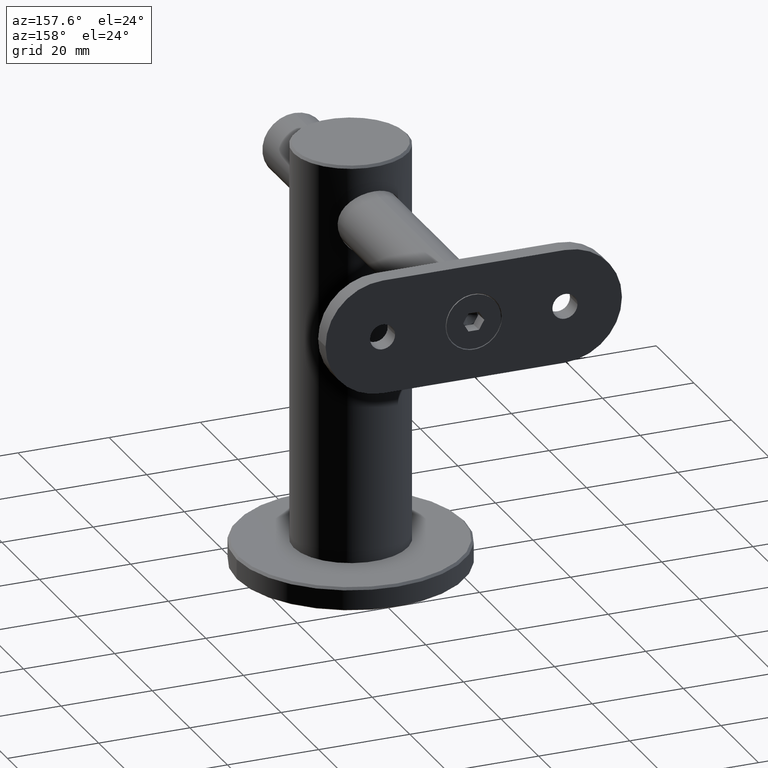
[diagram: clean part render]
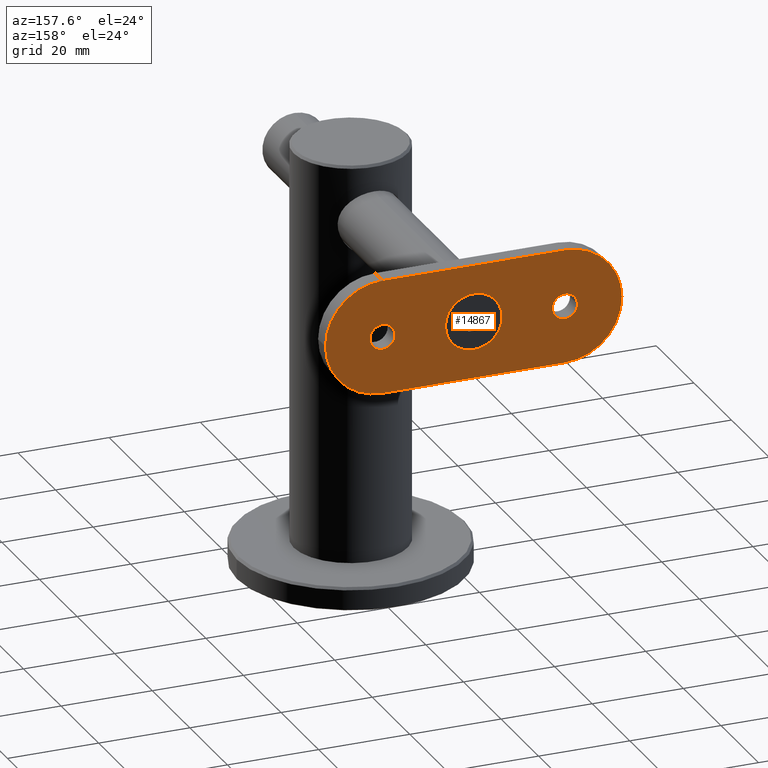
[diagram: same view with one face highlighted and labeled with its STEP entity id]
A machine part, auxiliary view. The second image highlights one B-rep face of the part: STEP entity #14867.
In plain terms, the highlighted planar face has unit normal (-0, -1, -0).
Its self-contained STEP definition (entity closure, byte-faithful):
#391 = DIRECTION ( 'NONE',  ( 0.0000000000000000000, 0.0000000000000000000, 1.000000000000000000 ) ) ;
#601 = FACE_OUTER_BOUND ( 'NONE', #7727, .T. ) ;
#981 = VERTEX_POINT ( 'NONE', #4517 ) ;
#1163 = DIRECTION ( 'NONE',  ( 0.0000000000000000000, 0.0000000000000000000, 1.000000000000000000 ) ) ;
#1387 = DIRECTION ( 'NONE',  ( 0.0000000000000000000, 0.0000000000000000000, -1.000000000000000000 ) ) ;
#1448 = CIRCLE ( 'NONE', #4873, 12.49999999999999600 ) ;
#1655 = VERTEX_POINT ( 'NONE', #14547 ) ;
#1741 = CARTESIAN_POINT ( 'NONE',  ( 4.694321675334250400E-015, 3.999999999999996400, 20.00000000000000000 ) ) ;
#2060 = VERTEX_POINT ( 'NONE', #18243 ) ;
#2430 = CIRCLE ( 'NONE', #15275, 2.749999999999999100 ) ;
#2469 = ORIENTED_EDGE ( 'NONE', *, *, #15576, .F. ) ;
#2502 = AXIS2_PLACEMENT_3D ( 'NONE', #5710, #16086, #1163 ) ;
#3831 = CARTESIAN_POINT ( 'NONE',  ( -12.50000000000000000, 3.999999999999996400, 20.00000000000000000 ) ) ;
#3983 = PLANE ( 'NONE',  #7722 ) ;
#4032 = ORIENTED_EDGE ( 'NONE', *, *, #17523, .T. ) ;
#4052 = DIRECTION ( 'NONE',  ( 0.0000000000000000000, -1.000000000000000000, 0.0000000000000000000 ) ) ;
#4410 = DIRECTION ( 'NONE',  ( -0.0000000000000000000, -0.0000000000000000000, -1.000000000000000000 ) ) ;
#4419 = EDGE_CURVE ( 'NONE', #14279, #14279, #4940, .T. ) ;
#4423 = EDGE_LOOP ( 'NONE', ( #5485 ) ) ;
#4465 = CIRCLE ( 'NONE', #17606, 12.50000000000000000 ) ;
#4517 = CARTESIAN_POINT ( 'NONE',  ( 12.50000000000000000, 3.999999999999996400, -20.00000000000000400 ) ) ;
#4873 = AXIS2_PLACEMENT_3D ( 'NONE', #10463, #13555, #17830 ) ;
#4884 = LINE ( 'NONE', #11638, #17168 ) ;
#4940 = CIRCLE ( 'NONE', #2502, 2.749999999999999100 ) ;
#5029 = DIRECTION ( 'NONE',  ( 0.0000000000000000000, 0.0000000000000000000, -1.000000000000000000 ) ) ;
#5481 = EDGE_CURVE ( 'NONE', #9453, #9453, #8885, .T. ) ;
#5485 = ORIENTED_EDGE ( 'NONE', *, *, #5481, .T. ) ;
#5710 = CARTESIAN_POINT ( 'NONE',  ( 4.694321675334250400E-015, 3.999999999999996400, -20.00000000000000000 ) ) ;
#5867 = CARTESIAN_POINT ( 'NONE',  ( 0.0000000000000000000, 3.999999999999996400, -3.144273252179730200E-016 ) ) ;
#6462 = CARTESIAN_POINT ( 'NONE',  ( 0.0000000000000000000, 3.999999999999996400, 20.00000000000000000 ) ) ;
#6580 = AXIS2_PLACEMENT_3D ( 'NONE', #5867, #17836, #13303 ) ;
#6831 = FACE_BOUND ( 'NONE', #8157, .T. ) ;
#6962 = ORIENTED_EDGE ( 'NONE', *, *, #4419, .F. ) ;
#7070 = CARTESIAN_POINT ( 'NONE',  ( 12.50000000000000000, 3.999999999999996400, 32.50000000000000000 ) ) ;
#7258 = CARTESIAN_POINT ( 'NONE',  ( 0.0000000000000000000, 3.999999999999996400, -20.00000000000000400 ) ) ;
#7433 = VERTEX_POINT ( 'NONE', #14814 ) ;
#7510 = EDGE_CURVE ( 'NONE', #981, #18730, #17187, .T. ) ;
#7722 = AXIS2_PLACEMENT_3D ( 'NONE', #7070, #4052, #15878 ) ;
#7727 = EDGE_LOOP ( 'NONE', ( #8166, #12499, #16768, #4032, #10395, #17388 ) ) ;
#7784 = CARTESIAN_POINT ( 'NONE',  ( 0.0000000000000000000, 3.999999999999996400, -6.200000000000001100 ) ) ;
#8054 = CIRCLE ( 'NONE', #18728, 12.50000000000000000 ) ;
#8157 = EDGE_LOOP ( 'NONE', ( #2469 ) ) ;
#8166 = ORIENTED_EDGE ( 'NONE', *, *, #8605, .F. ) ;
#8605 = EDGE_CURVE ( 'NONE', #16737, #15491, #14415, .T. ) ;
#8753 = DIRECTION ( 'NONE',  ( -0.0000000000000000000, 1.000000000000000000, -0.0000000000000000000 ) ) ;
#8885 = CIRCLE ( 'NONE', #6580, 6.200000000000001100 ) ;
#9453 = VERTEX_POINT ( 'NONE', #7784 ) ;
#10395 = ORIENTED_EDGE ( 'NONE', *, *, #7510, .T. ) ;
#10463 = CARTESIAN_POINT ( 'NONE',  ( 0.0000000000000000000, 3.999999999999996400, -20.00000000000000400 ) ) ;
#10795 = CARTESIAN_POINT ( 'NONE',  ( 0.0000000000000000000, 3.999999999999996400, 20.00000000000000000 ) ) ;
#11527 = CARTESIAN_POINT ( 'NONE',  ( -12.50000000000000000, 3.999999999999996400, -20.00000000000000400 ) ) ;
#11638 = CARTESIAN_POINT ( 'NONE',  ( 12.50000000000000000, 3.999999999999996400, 32.50000000000000000 ) ) ;
#12058 = DIRECTION ( 'NONE',  ( 0.0000000000000000000, 1.000000000000000000, 0.0000000000000000000 ) ) ;
#12217 = DIRECTION ( 'NONE',  ( -0.0000000000000000000, 1.000000000000000000, -0.0000000000000000000 ) ) ;
#12384 = DIRECTION ( 'NONE',  ( -0.0000000000000000000, -0.0000000000000000000, -1.000000000000000000 ) ) ;
#12499 = ORIENTED_EDGE ( 'NONE', *, *, #15961, .T. ) ;
#12644 = EDGE_CURVE ( 'NONE', #7433, #1655, #8054, .T. ) ;
#12739 = AXIS2_PLACEMENT_3D ( 'NONE', #7258, #8753, #1387 ) ;
#13303 = DIRECTION ( 'NONE',  ( 0.0000000000000000000, 0.0000000000000000000, -1.000000000000000000 ) ) ;
#13555 = DIRECTION ( 'NONE',  ( -0.0000000000000000000, 1.000000000000000000, -0.0000000000000000000 ) ) ;
#13760 = FACE_BOUND ( 'NONE', #4423, .T. ) ;
#13886 = DIRECTION ( 'NONE',  ( -0.0000000000000000000, 1.000000000000000000, -0.0000000000000000000 ) ) ;
#13892 = DIRECTION ( 'NONE',  ( 8.881784197001252300E-016, 0.0000000000000000000, -1.000000000000000000 ) ) ;
#14279 = VERTEX_POINT ( 'NONE', #16574 ) ;
#14415 = LINE ( 'NONE', #15362, #17880 ) ;
#14547 = CARTESIAN_POINT ( 'NONE',  ( 12.50000000000000000, 3.999999999999996400, 20.00000000000000000 ) ) ;
#14676 = FACE_BOUND ( 'NONE', #16223, .T. ) ;
#14814 = CARTESIAN_POINT ( 'NONE',  ( 0.0000000000000000000, 3.999999999999996400, 32.50000000000000000 ) ) ;
#14867 = ADVANCED_FACE ( 'NONE', ( #13760, #6831, #14676, #601 ), #3983, .F. ) ;
#15275 = AXIS2_PLACEMENT_3D ( 'NONE', #1741, #12058, #391 ) ;
#15362 = CARTESIAN_POINT ( 'NONE',  ( -12.50000000000000000, 3.999999999999996400, 32.50000000000000000 ) ) ;
#15491 = VERTEX_POINT ( 'NONE', #11527 ) ;
#15576 = EDGE_CURVE ( 'NONE', #2060, #2060, #2430, .T. ) ;
#15878 = DIRECTION ( 'NONE',  ( 0.0000000000000000000, -0.0000000000000000000, -1.000000000000000000 ) ) ;
#15961 = EDGE_CURVE ( 'NONE', #16737, #7433, #4465, .T. ) ;
#16086 = DIRECTION ( 'NONE',  ( 0.0000000000000000000, 1.000000000000000000, 0.0000000000000000000 ) ) ;
#16223 = EDGE_LOOP ( 'NONE', ( #6962 ) ) ;
#16574 = CARTESIAN_POINT ( 'NONE',  ( 4.694321675334250400E-015, 3.999999999999996400, -17.25000000000000000 ) ) ;
#16737 = VERTEX_POINT ( 'NONE', #3831 ) ;
#16768 = ORIENTED_EDGE ( 'NONE', *, *, #12644, .T. ) ;
#16809 = EDGE_CURVE ( 'NONE', #18730, #15491, #1448, .T. ) ;
#17043 = CARTESIAN_POINT ( 'NONE',  ( 0.0000000000000000000, 3.999999999999996400, -32.50000000000000000 ) ) ;
#17168 = VECTOR ( 'NONE', #4410, 1000.000000000000000 ) ;
#17187 = CIRCLE ( 'NONE', #12739, 12.49999999999999600 ) ;
#17388 = ORIENTED_EDGE ( 'NONE', *, *, #16809, .T. ) ;
#17523 = EDGE_CURVE ( 'NONE', #1655, #981, #4884, .T. ) ;
#17606 = AXIS2_PLACEMENT_3D ( 'NONE', #10795, #12217, #13892 ) ;
#17830 = DIRECTION ( 'NONE',  ( 0.0000000000000000000, 0.0000000000000000000, -1.000000000000000000 ) ) ;
#17836 = DIRECTION ( 'NONE',  ( 0.0000000000000000000, -1.000000000000000000, 0.0000000000000000000 ) ) ;
#17880 = VECTOR ( 'NONE', #12384, 1000.000000000000000 ) ;
#18243 = CARTESIAN_POINT ( 'NONE',  ( 4.694321675334250400E-015, 3.999999999999996400, 22.75000000000000000 ) ) ;
#18728 = AXIS2_PLACEMENT_3D ( 'NONE', #6462, #13886, #5029 ) ;
#18730 = VERTEX_POINT ( 'NONE', #17043 ) ;